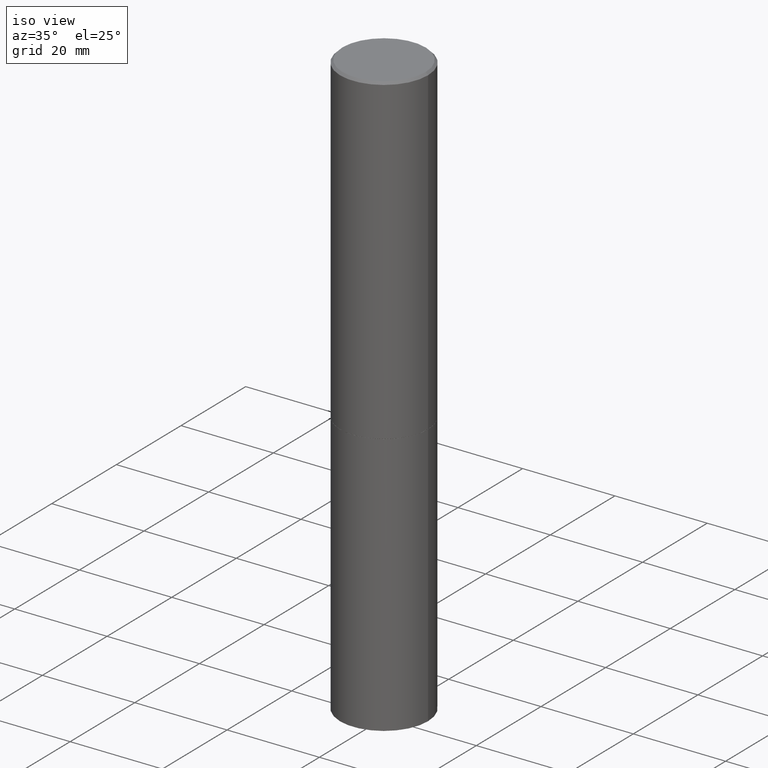
[diagram: clean part render]
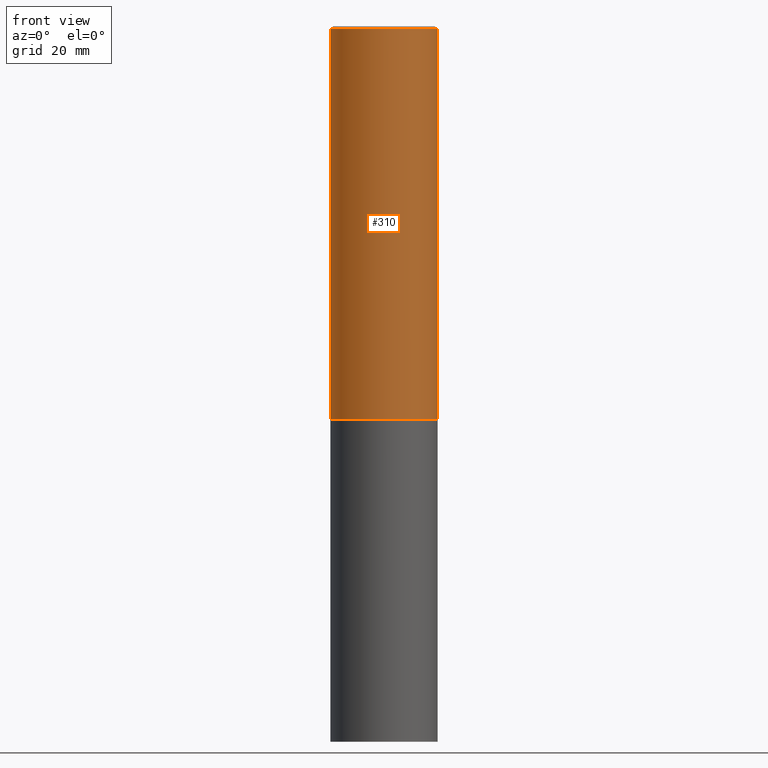
[diagram: tour spotlight — one face highlighted and labeled with its STEP entity id]
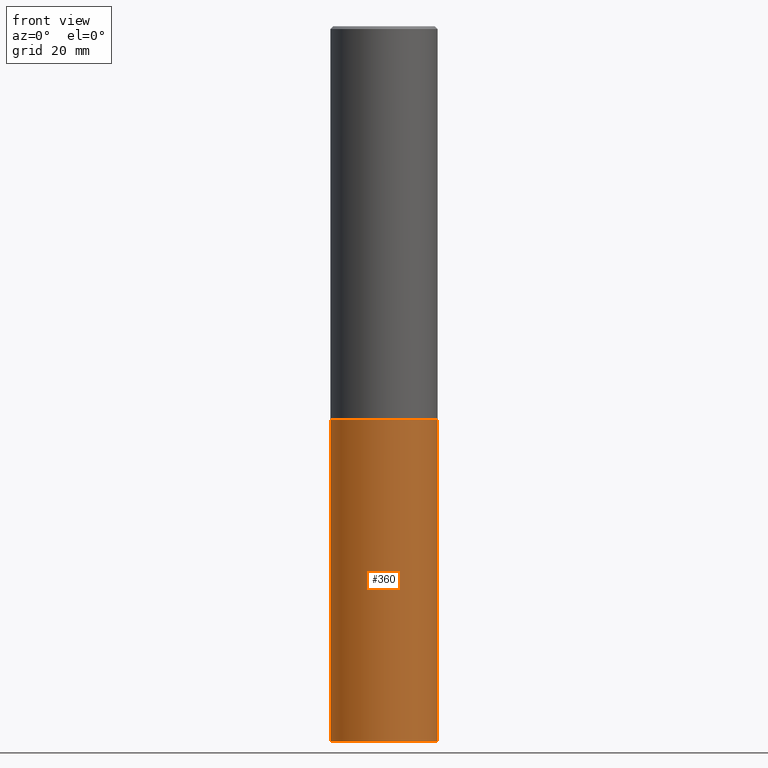
[diagram: tour spotlight — one face highlighted and labeled with its STEP entity id]
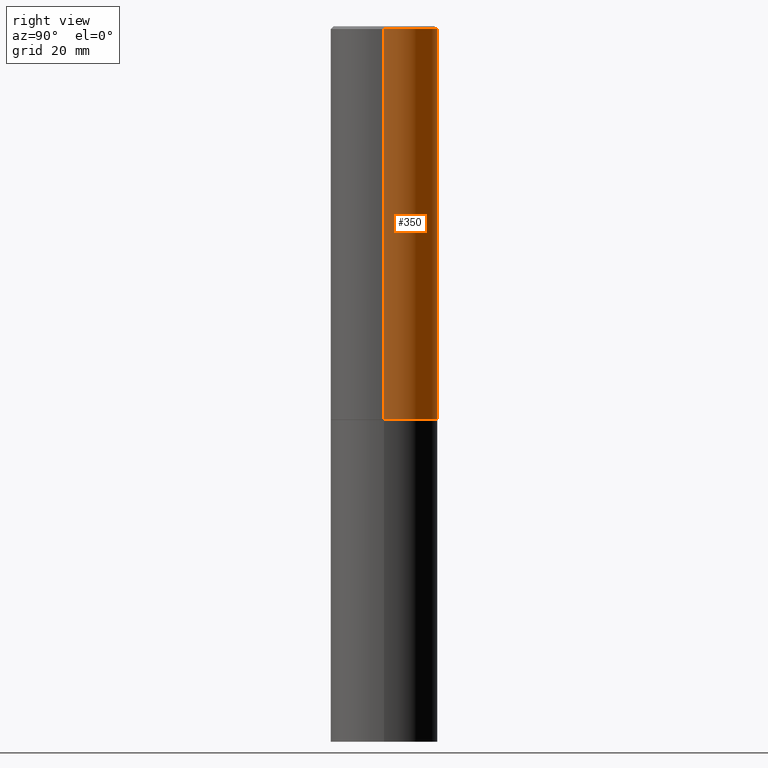
[diagram: tour spotlight — one face highlighted and labeled with its STEP entity id]
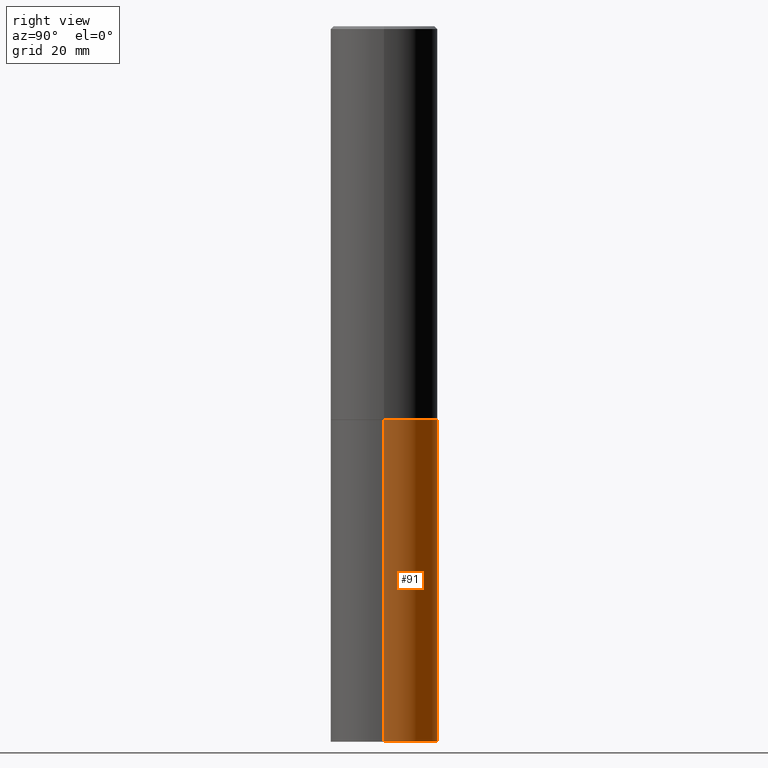
[diagram: tour spotlight — one face highlighted and labeled with its STEP entity id]
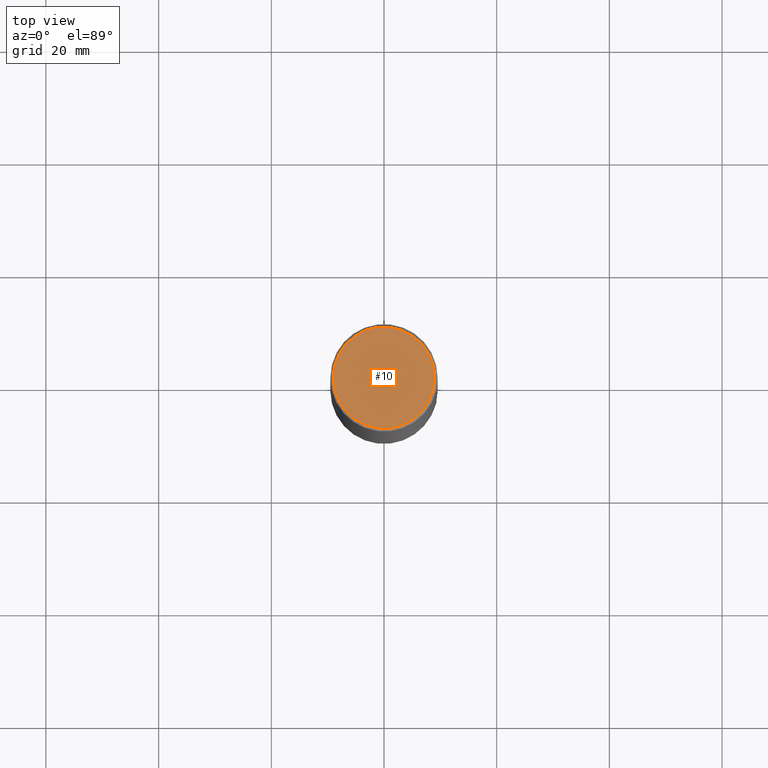
[diagram: tour spotlight — one face highlighted and labeled with its STEP entity id]
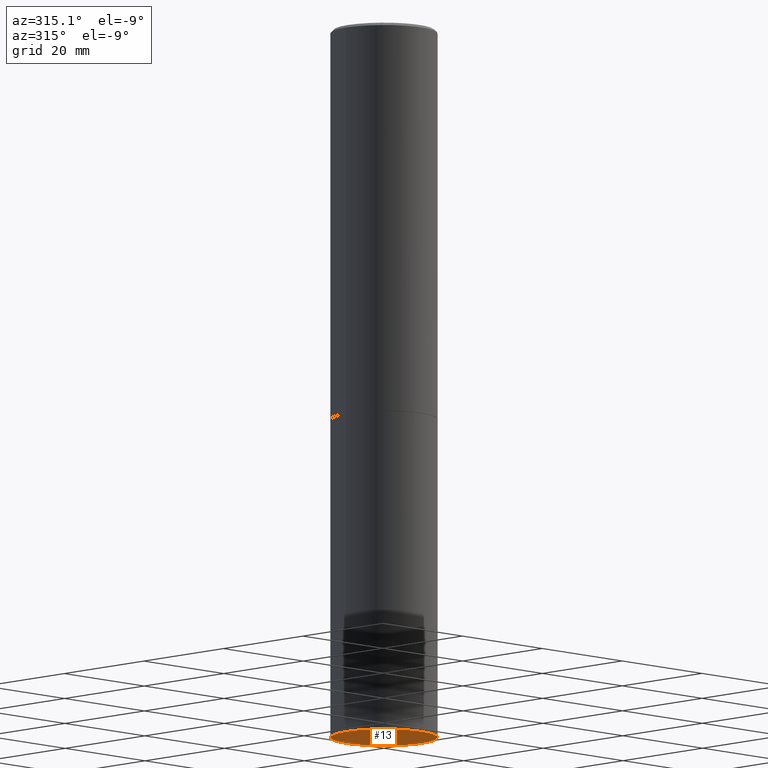
[diagram: tour spotlight — one face highlighted and labeled with its STEP entity id]
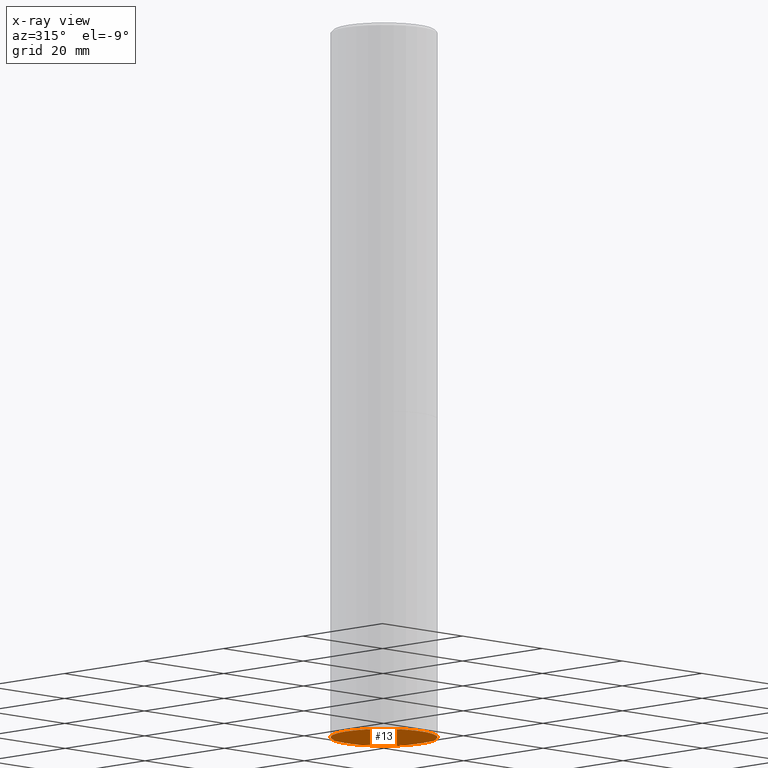
[diagram: x-ray of the same camera — body ghosted, this tour face saturated]
A machine part: a face-by-face anatomy tour. The part has 12 B-rep faces; the first image is the clean iso view, then the 6 largest visible faces are spotlighted one at a time (largest first), each with its STEP entity span.

Face 1 — front view, entity #310. In plain terms, the highlighted cylindrical surface (partial cylindrical patch) has radius 9.525 mm, axis along (-0, 0, 1).
Definition (entity closure, byte-faithful):
#4 = AXIS2_PLACEMENT_3D ( 'NONE', #246, #24, #251 ) ;
#24 = DIRECTION ( 'NONE',  ( -2.445468806185136597E-29, 3.491481338843145583E-15, 1.000000000000000000 ) ) ;
#26 = CARTESIAN_POINT ( 'NONE',  ( -0.3749999999999999445, -2.169420654527958195E-15, -2.749000000000000110 ) ) ;
#31 = CARTESIAN_POINT ( 'NONE',  ( 0.000000000000000000, 0.000000000000000000, 0.000000000000000000 ) ) ;
#39 = AXIS2_PLACEMENT_3D ( 'NONE', #282, #250, #279 ) ;
#43 = CARTESIAN_POINT ( 'NONE',  ( 0.3749999999999998335, -2.618611004132348439E-15, 1.828566290923475082E-29 ) ) ;
#45 = VERTEX_POINT ( 'NONE', #308 ) ;
#51 = FACE_OUTER_BOUND ( 'NONE', #353, .T. ) ;
#54 = DIRECTION ( 'NONE',  ( 1.000000000000000000, -6.982962677686265922E-15, 4.876176775795935793E-29 ) ) ;
#63 = VECTOR ( 'NONE', #187, 39.37007874015748143 ) ;
#65 = EDGE_CURVE ( 'NONE', #45, #217, #234, .T. ) ;
#98 = LINE ( 'NONE', #205, #154 ) ;
#109 = CARTESIAN_POINT ( 'NONE',  ( -0.3749999999999996669, 2.548781377355484352E-15, -0.02000000000000008715 ) ) ;
#112 = EDGE_CURVE ( 'NONE', #329, #132, #98, .T. ) ;
#132 = VERTEX_POINT ( 'NONE', #109 ) ;
#154 = VECTOR ( 'NONE', #354, 39.37007874015748143 ) ;
#182 = ORIENTED_EDGE ( 'NONE', *, *, #299, .F. ) ;
#187 = DIRECTION ( 'NONE',  ( -2.445468806185136877E-29, 3.491481338843145188E-15, 1.000000000000000000 ) ) ;
#188 = CARTESIAN_POINT ( 'NONE',  ( 0.3749999999999996669, -2.642516375941185662E-15, -0.02000000000000008715 ) ) ;
#203 = CIRCLE ( 'NONE', #4, 0.3749999999999999445 ) ;
#205 = CARTESIAN_POINT ( 'NONE',  ( -0.3749999999999998335, 2.664535259100374514E-15, -1.844600658845588757E-29 ) ) ;
#217 = VERTEX_POINT ( 'NONE', #188 ) ;
#218 = AXIS2_PLACEMENT_3D ( 'NONE', #31, #253, #54 ) ;
#220 = CYLINDRICAL_SURFACE ( 'NONE', #218, 0.3749999999999998335 ) ;
#222 = EDGE_CURVE ( 'NONE', #329, #45, #203, .T. ) ;
#234 = LINE ( 'NONE', #43, #63 ) ;
#240 = ORIENTED_EDGE ( 'NONE', *, *, #222, .T. ) ;
#246 = CARTESIAN_POINT ( 'NONE',  ( 6.722593748202941159E-29, -9.598082200479808430E-15, -2.749000000000000110 ) ) ;
#250 = DIRECTION ( 'NONE',  ( -2.445468806185136597E-29, 3.491481338843145583E-15, 1.000000000000000000 ) ) ;
#251 = DIRECTION ( 'NONE',  ( 1.000000000000000000, -6.982962677686269077E-15, 0.000000000000000000 ) ) ;
#253 = DIRECTION ( 'NONE',  ( -2.445468806185136597E-29, 3.491481338843145583E-15, 1.000000000000000000 ) ) ;
#264 = ORIENTED_EDGE ( 'NONE', *, *, #112, .F. ) ;
#279 = DIRECTION ( 'NONE',  ( 1.000000000000000000, -6.982962677686266711E-15, 0.000000000000000000 ) ) ;
#282 = CARTESIAN_POINT ( 'NONE',  ( 4.890937612370294178E-31, -6.982962677686321191E-17, -0.02000000000000008715 ) ) ;
#296 = CIRCLE ( 'NONE', #39, 0.3749999999999996669 ) ;
#299 = EDGE_CURVE ( 'NONE', #132, #217, #296, .T. ) ;
#308 = CARTESIAN_POINT ( 'NONE',  ( 0.3749999999999999445, -1.221669320461215845E-14, -2.749000000000000110 ) ) ;
#310 = ADVANCED_FACE ( 'NONE', ( #51 ), #220, .T. ) ;
#318 = ORIENTED_EDGE ( 'NONE', *, *, #65, .T. ) ;
#329 = VERTEX_POINT ( 'NONE', #26 ) ;
#353 = EDGE_LOOP ( 'NONE', ( #264, #240, #318, #182 ) ) ;
#354 = DIRECTION ( 'NONE',  ( -2.445468806185136877E-29, 3.491481338843145188E-15, 1.000000000000000000 ) ) ;

Face 2 — front view, entity #360. In plain terms, the highlighted cylindrical surface (partial cylindrical patch) has radius 9.525 mm, axis along (-0, 0, 1).
Definition (entity closure, byte-faithful):
#12 = ORIENTED_EDGE ( 'NONE', *, *, #151, .T. ) ;
#17 = EDGE_LOOP ( 'NONE', ( #152, #223, #12, #275 ) ) ;
#29 = CARTESIAN_POINT ( 'NONE',  ( 0.3750000000000000555, -1.222018468595100145E-14, -2.750000000000000000 ) ) ;
#37 = EDGE_CURVE ( 'NONE', #193, #129, #113, .T. ) ;
#46 = VECTOR ( 'NONE', #207, 39.37007874015748143 ) ;
#48 = CIRCLE ( 'NONE', #255, 0.3750000000000000555 ) ;
#84 = DIRECTION ( 'NONE',  ( -2.445468806185136597E-29, 3.491481338843145583E-15, 1.000000000000000000 ) ) ;
#87 = AXIS2_PLACEMENT_3D ( 'NONE', #338, #88, #198 ) ;
#88 = DIRECTION ( 'NONE',  ( -2.445468806185136597E-29, 3.491481338843145583E-15, 1.000000000000000000 ) ) ;
#113 = CIRCLE ( 'NONE', #87, 0.3750000000000000555 ) ;
#123 = EDGE_CURVE ( 'NONE', #193, #210, #295, .T. ) ;
#124 = FACE_OUTER_BOUND ( 'NONE', #17, .T. ) ;
#129 = VERTEX_POINT ( 'NONE', #243 ) ;
#145 = CARTESIAN_POINT ( 'NONE',  ( 6.725039217009124520E-29, -9.601573681818649859E-15, -2.750000000000000000 ) ) ;
#151 = EDGE_CURVE ( 'NONE', #129, #349, #319, .T. ) ;
#152 = ORIENTED_EDGE ( 'NONE', *, *, #123, .F. ) ;
#157 = CARTESIAN_POINT ( 'NONE',  ( -0.3750000000000000555, -1.086495492891681496E-14, -5.000000000000000000 ) ) ;
#165 = DIRECTION ( 'NONE',  ( 1.000000000000000000, -6.982962677686265922E-15, 4.876176775795935793E-29 ) ) ;
#193 = VERTEX_POINT ( 'NONE', #157 ) ;
#198 = DIRECTION ( 'NONE',  ( 1.000000000000000000, -6.982962677686266711E-15, 0.000000000000000000 ) ) ;
#202 = DIRECTION ( 'NONE',  ( -2.445468806185136597E-29, 3.491481338843145583E-15, 1.000000000000000000 ) ) ;
#207 = DIRECTION ( 'NONE',  ( -2.445468806185136877E-29, 3.491481338843145188E-15, 1.000000000000000000 ) ) ;
#210 = VERTEX_POINT ( 'NONE', #236 ) ;
#212 = CARTESIAN_POINT ( 'NONE',  ( 0.3750000000000000555, -2.618611004132350016E-15, 1.828566290923476203E-29 ) ) ;
#223 = ORIENTED_EDGE ( 'NONE', *, *, #37, .T. ) ;
#226 = CYLINDRICAL_SURFACE ( 'NONE', #355, 0.3750000000000000555 ) ;
#236 = CARTESIAN_POINT ( 'NONE',  ( -0.3750000000000000555, -1.086495492891681496E-14, -2.750000000000000000 ) ) ;
#243 = CARTESIAN_POINT ( 'NONE',  ( 0.3750000000000000555, -2.007601769834807990E-14, -5.000000000000000000 ) ) ;
#255 = AXIS2_PLACEMENT_3D ( 'NONE', #145, #84, #304 ) ;
#268 = CARTESIAN_POINT ( 'NONE',  ( -0.3750000000000000555, 2.664535259100376091E-15, -1.844600658845589598E-29 ) ) ;
#275 = ORIENTED_EDGE ( 'NONE', *, *, #289, .F. ) ;
#289 = EDGE_CURVE ( 'NONE', #210, #349, #48, .T. ) ;
#295 = LINE ( 'NONE', #268, #330 ) ;
#304 = DIRECTION ( 'NONE',  ( 1.000000000000000000, -6.982962677686266711E-15, 0.000000000000000000 ) ) ;
#319 = LINE ( 'NONE', #212, #46 ) ;
#326 = DIRECTION ( 'NONE',  ( -2.445468806185136877E-29, 3.491481338843145188E-15, 1.000000000000000000 ) ) ;
#330 = VECTOR ( 'NONE', #326, 39.37007874015748143 ) ;
#338 = CARTESIAN_POINT ( 'NONE',  ( 1.222734403092568523E-28, -1.745740669421572989E-14, -5.000000000000000000 ) ) ;
#341 = CARTESIAN_POINT ( 'NONE',  ( 0.000000000000000000, 0.000000000000000000, 0.000000000000000000 ) ) ;
#349 = VERTEX_POINT ( 'NONE', #29 ) ;
#355 = AXIS2_PLACEMENT_3D ( 'NONE', #341, #202, #165 ) ;
#360 = ADVANCED_FACE ( 'NONE', ( #124 ), #226, .T. ) ;

Face 3 — right view, entity #350. In plain terms, the highlighted cylindrical surface (partial cylindrical patch) has radius 9.525 mm, axis along (-0, 0, 1).
Definition (entity closure, byte-faithful):
#5 = DIRECTION ( 'NONE',  ( 1.000000000000000000, -6.982962677686265922E-15, 4.876176775795935793E-29 ) ) ;
#11 = DIRECTION ( 'NONE',  ( 1.000000000000000000, -6.982962677686269077E-15, 0.000000000000000000 ) ) ;
#22 = CARTESIAN_POINT ( 'NONE',  ( 6.722593748202941159E-29, -9.598082200479808430E-15, -2.749000000000000110 ) ) ;
#26 = CARTESIAN_POINT ( 'NONE',  ( -0.3749999999999999445, -2.169420654527958195E-15, -2.749000000000000110 ) ) ;
#43 = CARTESIAN_POINT ( 'NONE',  ( 0.3749999999999998335, -2.618611004132348439E-15, 1.828566290923475082E-29 ) ) ;
#45 = VERTEX_POINT ( 'NONE', #308 ) ;
#50 = ORIENTED_EDGE ( 'NONE', *, *, #97, .T. ) ;
#63 = VECTOR ( 'NONE', #187, 39.37007874015748143 ) ;
#65 = EDGE_CURVE ( 'NONE', #45, #217, #234, .T. ) ;
#70 = DIRECTION ( 'NONE',  ( 1.000000000000000000, -6.982962677686266711E-15, 0.000000000000000000 ) ) ;
#72 = ORIENTED_EDGE ( 'NONE', *, *, #216, .F. ) ;
#80 = EDGE_LOOP ( 'NONE', ( #50, #265, #72, #235 ) ) ;
#86 = FACE_OUTER_BOUND ( 'NONE', #80, .T. ) ;
#95 = CIRCLE ( 'NONE', #163, 0.3749999999999996669 ) ;
#97 = EDGE_CURVE ( 'NONE', #45, #329, #137, .T. ) ;
#98 = LINE ( 'NONE', #205, #154 ) ;
#109 = CARTESIAN_POINT ( 'NONE',  ( -0.3749999999999996669, 2.548781377355484352E-15, -0.02000000000000008715 ) ) ;
#112 = EDGE_CURVE ( 'NONE', #329, #132, #98, .T. ) ;
#114 = AXIS2_PLACEMENT_3D ( 'NONE', #257, #121, #5 ) ;
#121 = DIRECTION ( 'NONE',  ( -2.445468806185136597E-29, 3.491481338843145583E-15, 1.000000000000000000 ) ) ;
#132 = VERTEX_POINT ( 'NONE', #109 ) ;
#137 = CIRCLE ( 'NONE', #225, 0.3749999999999999445 ) ;
#154 = VECTOR ( 'NONE', #354, 39.37007874015748143 ) ;
#163 = AXIS2_PLACEMENT_3D ( 'NONE', #351, #321, #70 ) ;
#187 = DIRECTION ( 'NONE',  ( -2.445468806185136877E-29, 3.491481338843145188E-15, 1.000000000000000000 ) ) ;
#188 = CARTESIAN_POINT ( 'NONE',  ( 0.3749999999999996669, -2.642516375941185662E-15, -0.02000000000000008715 ) ) ;
#197 = CYLINDRICAL_SURFACE ( 'NONE', #114, 0.3749999999999998335 ) ;
#205 = CARTESIAN_POINT ( 'NONE',  ( -0.3749999999999998335, 2.664535259100374514E-15, -1.844600658845588757E-29 ) ) ;
#216 = EDGE_CURVE ( 'NONE', #217, #132, #95, .T. ) ;
#217 = VERTEX_POINT ( 'NONE', #188 ) ;
#225 = AXIS2_PLACEMENT_3D ( 'NONE', #22, #348, #11 ) ;
#234 = LINE ( 'NONE', #43, #63 ) ;
#235 = ORIENTED_EDGE ( 'NONE', *, *, #65, .F. ) ;
#257 = CARTESIAN_POINT ( 'NONE',  ( 0.000000000000000000, 0.000000000000000000, 0.000000000000000000 ) ) ;
#265 = ORIENTED_EDGE ( 'NONE', *, *, #112, .T. ) ;
#308 = CARTESIAN_POINT ( 'NONE',  ( 0.3749999999999999445, -1.221669320461215845E-14, -2.749000000000000110 ) ) ;
#321 = DIRECTION ( 'NONE',  ( -2.445468806185136597E-29, 3.491481338843145583E-15, 1.000000000000000000 ) ) ;
#329 = VERTEX_POINT ( 'NONE', #26 ) ;
#348 = DIRECTION ( 'NONE',  ( -2.445468806185136597E-29, 3.491481338843145583E-15, 1.000000000000000000 ) ) ;
#350 = ADVANCED_FACE ( 'NONE', ( #86 ), #197, .T. ) ;
#351 = CARTESIAN_POINT ( 'NONE',  ( 4.890937612370294178E-31, -6.982962677686321191E-17, -0.02000000000000008715 ) ) ;
#354 = DIRECTION ( 'NONE',  ( -2.445468806185136877E-29, 3.491481338843145188E-15, 1.000000000000000000 ) ) ;

Face 4 — right view, entity #91. In plain terms, the highlighted cylindrical surface (partial cylindrical patch) has radius 9.525 mm, axis along (-0, 0, 1).
Definition (entity closure, byte-faithful):
#16 = DIRECTION ( 'NONE',  ( 1.000000000000000000, -6.982962677686265922E-15, 4.876176775795935793E-29 ) ) ;
#29 = CARTESIAN_POINT ( 'NONE',  ( 0.3750000000000000555, -1.222018468595100145E-14, -2.750000000000000000 ) ) ;
#46 = VECTOR ( 'NONE', #207, 39.37007874015748143 ) ;
#67 = CARTESIAN_POINT ( 'NONE',  ( 1.222734403092568523E-28, -1.745740669421572989E-14, -5.000000000000000000 ) ) ;
#74 = ORIENTED_EDGE ( 'NONE', *, *, #258, .F. ) ;
#91 = ADVANCED_FACE ( 'NONE', ( #100 ), #357, .T. ) ;
#99 = EDGE_LOOP ( 'NONE', ( #325, #277, #74, #173 ) ) ;
#100 = FACE_OUTER_BOUND ( 'NONE', #99, .T. ) ;
#107 = DIRECTION ( 'NONE',  ( -2.445468806185136597E-29, 3.491481338843145583E-15, 1.000000000000000000 ) ) ;
#122 = CIRCLE ( 'NONE', #315, 0.3750000000000000555 ) ;
#123 = EDGE_CURVE ( 'NONE', #193, #210, #295, .T. ) ;
#129 = VERTEX_POINT ( 'NONE', #243 ) ;
#133 = CARTESIAN_POINT ( 'NONE',  ( 0.000000000000000000, 0.000000000000000000, 0.000000000000000000 ) ) ;
#143 = DIRECTION ( 'NONE',  ( 1.000000000000000000, -6.982962677686266711E-15, 0.000000000000000000 ) ) ;
#151 = EDGE_CURVE ( 'NONE', #129, #349, #319, .T. ) ;
#157 = CARTESIAN_POINT ( 'NONE',  ( -0.3750000000000000555, -1.086495492891681496E-14, -5.000000000000000000 ) ) ;
#172 = CARTESIAN_POINT ( 'NONE',  ( 6.725039217009124520E-29, -9.601573681818649859E-15, -2.750000000000000000 ) ) ;
#173 = ORIENTED_EDGE ( 'NONE', *, *, #151, .F. ) ;
#174 = EDGE_CURVE ( 'NONE', #129, #193, #122, .T. ) ;
#183 = DIRECTION ( 'NONE',  ( 1.000000000000000000, -6.982962677686266711E-15, 0.000000000000000000 ) ) ;
#193 = VERTEX_POINT ( 'NONE', #157 ) ;
#204 = AXIS2_PLACEMENT_3D ( 'NONE', #172, #276, #143 ) ;
#207 = DIRECTION ( 'NONE',  ( -2.445468806185136877E-29, 3.491481338843145188E-15, 1.000000000000000000 ) ) ;
#210 = VERTEX_POINT ( 'NONE', #236 ) ;
#212 = CARTESIAN_POINT ( 'NONE',  ( 0.3750000000000000555, -2.618611004132350016E-15, 1.828566290923476203E-29 ) ) ;
#231 = CIRCLE ( 'NONE', #204, 0.3750000000000000555 ) ;
#236 = CARTESIAN_POINT ( 'NONE',  ( -0.3750000000000000555, -1.086495492891681496E-14, -2.750000000000000000 ) ) ;
#238 = DIRECTION ( 'NONE',  ( -2.445468806185136597E-29, 3.491481338843145583E-15, 1.000000000000000000 ) ) ;
#243 = CARTESIAN_POINT ( 'NONE',  ( 0.3750000000000000555, -2.007601769834807990E-14, -5.000000000000000000 ) ) ;
#258 = EDGE_CURVE ( 'NONE', #349, #210, #231, .T. ) ;
#262 = AXIS2_PLACEMENT_3D ( 'NONE', #133, #238, #16 ) ;
#268 = CARTESIAN_POINT ( 'NONE',  ( -0.3750000000000000555, 2.664535259100376091E-15, -1.844600658845589598E-29 ) ) ;
#276 = DIRECTION ( 'NONE',  ( -2.445468806185136597E-29, 3.491481338843145583E-15, 1.000000000000000000 ) ) ;
#277 = ORIENTED_EDGE ( 'NONE', *, *, #123, .T. ) ;
#295 = LINE ( 'NONE', #268, #330 ) ;
#315 = AXIS2_PLACEMENT_3D ( 'NONE', #67, #107, #183 ) ;
#319 = LINE ( 'NONE', #212, #46 ) ;
#325 = ORIENTED_EDGE ( 'NONE', *, *, #174, .T. ) ;
#326 = DIRECTION ( 'NONE',  ( -2.445468806185136877E-29, 3.491481338843145188E-15, 1.000000000000000000 ) ) ;
#330 = VECTOR ( 'NONE', #326, 39.37007874015748143 ) ;
#349 = VERTEX_POINT ( 'NONE', #29 ) ;
#357 = CYLINDRICAL_SURFACE ( 'NONE', #262, 0.3750000000000000555 ) ;

Face 5 — top view, entity #10. In plain terms, the highlighted planar face has unit normal (0, -0, -1).
Definition (entity closure, byte-faithful):
#10 = ADVANCED_FACE ( 'NONE', ( #303 ), #55, .F. ) ;
#28 = DIRECTION ( 'NONE',  ( 2.438088387897960049E-29, -3.491481338843145188E-15, -1.000000000000000000 ) ) ;
#30 = DIRECTION ( 'NONE',  ( -1.000000000000000000, 6.982962677686265922E-15, -4.876176775795935793E-29 ) ) ;
#55 = PLANE ( 'NONE',  #180 ) ;
#66 = EDGE_LOOP ( 'NONE', ( #111, #356 ) ) ;
#75 = EDGE_CURVE ( 'NONE', #108, #232, #347, .T. ) ;
#92 = AXIS2_PLACEMENT_3D ( 'NONE', #361, #118, #196 ) ;
#108 = VERTEX_POINT ( 'NONE', #328 ) ;
#111 = ORIENTED_EDGE ( 'NONE', *, *, #75, .T. ) ;
#118 = DIRECTION ( 'NONE',  ( -2.445468806185136597E-29, 3.491481338843145583E-15, 1.000000000000000000 ) ) ;
#119 = CARTESIAN_POINT ( 'NONE',  ( 2.478951750578621842E-15, 0.3549999999999996492, -1.235207362799214833E-15 ) ) ;
#160 = DIRECTION ( 'NONE',  ( 1.000000000000000000, -6.982962677686265922E-15, 4.876231632511992667E-29 ) ) ;
#164 = CARTESIAN_POINT ( 'NONE',  ( -2.087702828670439639E-46, 2.980686340760894400E-32, 8.537024980200822558E-18 ) ) ;
#180 = AXIS2_PLACEMENT_3D ( 'NONE', #119, #28, #30 ) ;
#196 = DIRECTION ( 'NONE',  ( 1.000000000000000000, -6.982962677686265922E-15, 4.876231632511992667E-29 ) ) ;
#232 = VERTEX_POINT ( 'NONE', #334 ) ;
#256 = CIRCLE ( 'NONE', #92, 0.3549999999999996492 ) ;
#270 = DIRECTION ( 'NONE',  ( -2.445468806185136597E-29, 3.491481338843145583E-15, 1.000000000000000000 ) ) ;
#284 = EDGE_CURVE ( 'NONE', #232, #108, #256, .T. ) ;
#303 = FACE_OUTER_BOUND ( 'NONE', #66, .T. ) ;
#328 = CARTESIAN_POINT ( 'NONE',  ( -0.3549999999999996492, 2.513866563967053097E-15, 8.537024980183364388E-18 ) ) ;
#334 = CARTESIAN_POINT ( 'NONE',  ( 0.3549999999999996492, -2.538996582575038287E-15, 8.537024980218368550E-18 ) ) ;
#347 = CIRCLE ( 'NONE', #362, 0.3549999999999996492 ) ;
#356 = ORIENTED_EDGE ( 'NONE', *, *, #284, .T. ) ;
#361 = CARTESIAN_POINT ( 'NONE',  ( -2.087702828670439639E-46, 2.980686340760894400E-32, 8.537024980200822558E-18 ) ) ;
#362 = AXIS2_PLACEMENT_3D ( 'NONE', #164, #270, #160 ) ;

Face 6 — auxiliary view, entity #13. An x-ray twin of the same camera follows (body ghosted, this face saturated) — the face is partly hidden behind the body. In plain terms, the highlighted planar face has unit normal (0, -0, -1).
Definition (entity closure, byte-faithful):
#2 = PLANE ( 'NONE',  #184 ) ;
#13 = ADVANCED_FACE ( 'NONE', ( #170 ), #2, .T. ) ;
#37 = EDGE_CURVE ( 'NONE', #193, #129, #113, .T. ) ;
#67 = CARTESIAN_POINT ( 'NONE',  ( 1.222734403092568523E-28, -1.745740669421572989E-14, -5.000000000000000000 ) ) ;
#87 = AXIS2_PLACEMENT_3D ( 'NONE', #338, #88, #198 ) ;
#88 = DIRECTION ( 'NONE',  ( -2.445468806185136597E-29, 3.491481338843145583E-15, 1.000000000000000000 ) ) ;
#102 = EDGE_LOOP ( 'NONE', ( #158, #245 ) ) ;
#107 = DIRECTION ( 'NONE',  ( -2.445468806185136597E-29, 3.491481338843145583E-15, 1.000000000000000000 ) ) ;
#113 = CIRCLE ( 'NONE', #87, 0.3750000000000000555 ) ;
#122 = CIRCLE ( 'NONE', #315, 0.3750000000000000555 ) ;
#129 = VERTEX_POINT ( 'NONE', #243 ) ;
#144 = DIRECTION ( 'NONE',  ( 2.438088387897960049E-29, -3.491481338843145188E-15, -1.000000000000000000 ) ) ;
#157 = CARTESIAN_POINT ( 'NONE',  ( -0.3750000000000000555, -1.086495492891681496E-14, -5.000000000000000000 ) ) ;
#158 = ORIENTED_EDGE ( 'NONE', *, *, #174, .F. ) ;
#170 = FACE_OUTER_BOUND ( 'NONE', #102, .T. ) ;
#174 = EDGE_CURVE ( 'NONE', #129, #193, #122, .T. ) ;
#183 = DIRECTION ( 'NONE',  ( 1.000000000000000000, -6.982962677686266711E-15, 0.000000000000000000 ) ) ;
#184 = AXIS2_PLACEMENT_3D ( 'NONE', #280, #144, #335 ) ;
#193 = VERTEX_POINT ( 'NONE', #157 ) ;
#198 = DIRECTION ( 'NONE',  ( 1.000000000000000000, -6.982962677686266711E-15, 0.000000000000000000 ) ) ;
#243 = CARTESIAN_POINT ( 'NONE',  ( 0.3750000000000000555, -2.007601769834807990E-14, -5.000000000000000000 ) ) ;
#245 = ORIENTED_EDGE ( 'NONE', *, *, #37, .F. ) ;
#280 = CARTESIAN_POINT ( 'NONE',  ( 2.618611004132472290E-15, 0.3749999999999825695, -5.000000000000000888 ) ) ;
#315 = AXIS2_PLACEMENT_3D ( 'NONE', #67, #107, #183 ) ;
#335 = DIRECTION ( 'NONE',  ( -1.000000000000000000, 6.982962677686265922E-15, -4.876176775795935793E-29 ) ) ;
#338 = CARTESIAN_POINT ( 'NONE',  ( 1.222734403092568523E-28, -1.745740669421572989E-14, -5.000000000000000000 ) ) ;